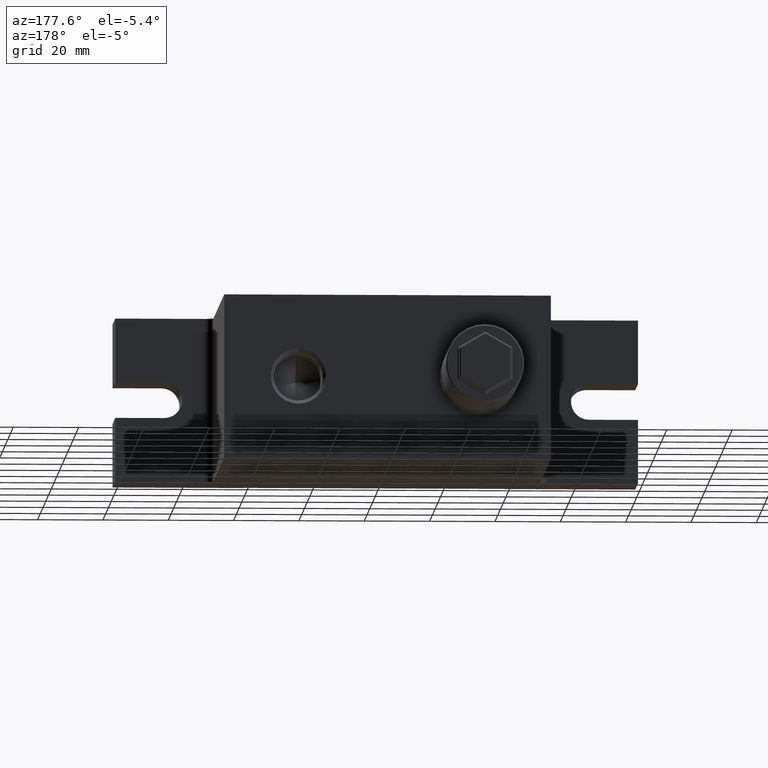
[diagram: clean part render]
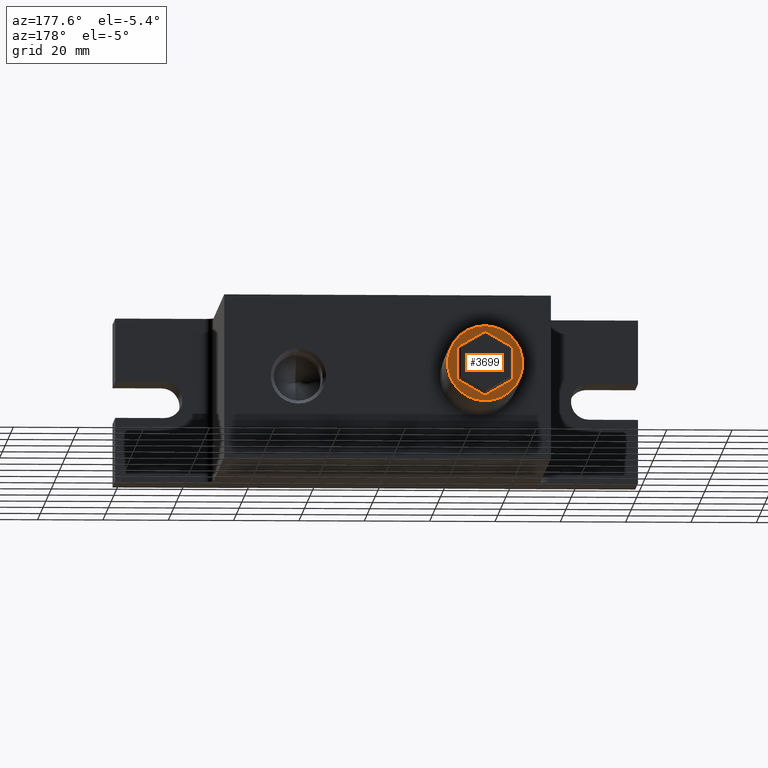
[diagram: same view with one face highlighted and labeled with its STEP entity id]
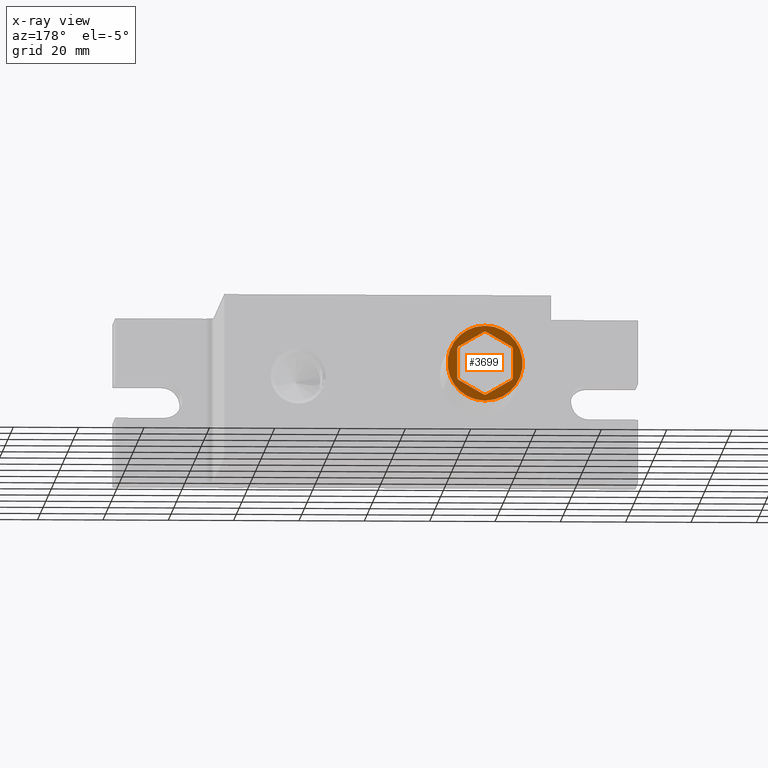
[diagram: x-ray of the same camera — body ghosted, the highlighted face saturated]
A machine part, auxiliary view. The second image highlights one B-rep face of the part: STEP entity #3699.
The next image is the same camera in x-ray: the body ghosted, the highlighted face saturated — about 0% of this face is hidden behind the body in this view.
In plain terms, the highlighted planar face has unit normal (0, 1, 0).
Its self-contained STEP definition (entity closure, byte-faithful):
#95 = AXIS2_PLACEMENT_3D ( 'NONE', #2084, #6870, #3706 ) ;
#120 = CARTESIAN_POINT ( 'NONE',  ( -36.50000000000000000, 94.00000000000000000, 4.330127018922191000 ) ) ;
#211 = VERTEX_POINT ( 'NONE', #5470 ) ;
#224 = CIRCLE ( 'NONE', #2740, 11.50000000000000000 ) ;
#235 = VECTOR ( 'NONE', #1943, 1000.000000000000000 ) ;
#265 = CARTESIAN_POINT ( 'NONE',  ( -35.50000000000000000, 94.00000000000000000, 4.330127018922191000 ) ) ;
#306 = CARTESIAN_POINT ( 'NONE',  ( -36.50000000000000000, 94.00000000000000000, -4.330127018922191000 ) ) ;
#331 = AXIS2_PLACEMENT_3D ( 'NONE', #3846, #4343, #1154 ) ;
#406 = CARTESIAN_POINT ( 'NONE',  ( -28.00000000000000000, 94.00000000000000000, 0.0000000000000000000 ) ) ;
#458 = DIRECTION ( 'NONE',  ( 0.0000000000000000000, 1.000000000000000000, 0.0000000000000000000 ) ) ;
#703 = EDGE_CURVE ( 'NONE', #992, #1751, #4697, .T. ) ;
#926 = VECTOR ( 'NONE', #3487, 1000.000000000000000 ) ;
#951 = CARTESIAN_POINT ( 'NONE',  ( -32.25000000000000000, 94.00000000000000000, -7.361215932167730200 ) ) ;
#958 = DIRECTION ( 'NONE',  ( 0.0000000000000000000, 1.000000000000000000, 0.0000000000000000000 ) ) ;
#974 = DIRECTION ( 'NONE',  ( 0.0000000000000000000, 0.0000000000000000000, -1.000000000000000000 ) ) ;
#982 = VERTEX_POINT ( 'NONE', #306 ) ;
#992 = VERTEX_POINT ( 'NONE', #2489 ) ;
#1151 = CARTESIAN_POINT ( 'NONE',  ( -36.50000000000000000, 94.00000000000000000, 0.0000000000000000000 ) ) ;
#1154 = DIRECTION ( 'NONE',  ( 0.0000000000000000000, 0.0000000000000000000, -1.000000000000000000 ) ) ;
#1189 = DIRECTION ( 'NONE',  ( 0.0000000000000000000, 1.000000000000000000, 0.0000000000000000000 ) ) ;
#1219 = DIRECTION ( 'NONE',  ( 0.0000000000000000000, 0.0000000000000000000, -1.000000000000000000 ) ) ;
#1249 = LINE ( 'NONE', #6448, #4647 ) ;
#1270 = LINE ( 'NONE', #2387, #926 ) ;
#1289 = VERTEX_POINT ( 'NONE', #1541 ) ;
#1301 = EDGE_CURVE ( 'NONE', #2061, #4721, #1975, .T. ) ;
#1310 = ORIENTED_EDGE ( 'NONE', *, *, #3959, .T. ) ;
#1348 = FACE_BOUND ( 'NONE', #6830, .T. ) ;
#1361 = AXIS2_PLACEMENT_3D ( 'NONE', #3934, #5623, #6158 ) ;
#1364 = VERTEX_POINT ( 'NONE', #4935 ) ;
#1383 = VECTOR ( 'NONE', #3113, 1000.000000000000000 ) ;
#1430 = DIRECTION ( 'NONE',  ( 0.0000000000000000000, 0.0000000000000000000, -1.000000000000000000 ) ) ;
#1485 = CARTESIAN_POINT ( 'NONE',  ( -28.00000000000000000, 94.00000000000000000, -8.660254037844390900 ) ) ;
#1501 = ORIENTED_EDGE ( 'NONE', *, *, #2509, .F. ) ;
#1504 = PLANE ( 'NONE',  #4076 ) ;
#1515 = CIRCLE ( 'NONE', #6824, 1.000000000000000000 ) ;
#1541 = CARTESIAN_POINT ( 'NONE',  ( -28.00000000000000000, 94.00000000000000000, -11.50000000000000000 ) ) ;
#1567 = CARTESIAN_POINT ( 'NONE',  ( -19.50000000000000000, 94.00000000000000000, -4.330127018922199900 ) ) ;
#1614 = DIRECTION ( 'NONE',  ( 0.0000000000000000000, 0.0000000000000000000, -1.000000000000000000 ) ) ;
#1623 = CARTESIAN_POINT ( 'NONE',  ( -28.50000000000000000, 94.00000000000000000, -9.526279441628831900 ) ) ;
#1638 = DIRECTION ( 'NONE',  ( 0.0000000000000000000, 0.0000000000000000000, -1.000000000000000000 ) ) ;
#1750 = ORIENTED_EDGE ( 'NONE', *, *, #6162, .F. ) ;
#1751 = VERTEX_POINT ( 'NONE', #1623 ) ;
#1839 = CIRCLE ( 'NONE', #331, 1.000000000000000000 ) ;
#1869 = VECTOR ( 'NONE', #5765, 1000.000000000000000 ) ;
#1943 = DIRECTION ( 'NONE',  ( -0.0000000000000000000, -0.0000000000000000000, 1.000000000000000000 ) ) ;
#1975 = CIRCLE ( 'NONE', #5735, 1.000000000000000000 ) ;
#1997 = CARTESIAN_POINT ( 'NONE',  ( -23.75000000000000000, 94.00000000000000000, 7.361215932167730200 ) ) ;
#2003 = DIRECTION ( 'NONE',  ( 0.0000000000000000000, 1.000000000000000000, 0.0000000000000000000 ) ) ;
#2061 = VERTEX_POINT ( 'NONE', #4977 ) ;
#2065 = VERTEX_POINT ( 'NONE', #120 ) ;
#2084 = CARTESIAN_POINT ( 'NONE',  ( -28.00000000000000000, 94.00000000000000000, -8.660254037844390900 ) ) ;
#2291 = VERTEX_POINT ( 'NONE', #1567 ) ;
#2322 = ORIENTED_EDGE ( 'NONE', *, *, #5463, .T. ) ;
#2356 = CARTESIAN_POINT ( 'NONE',  ( -28.00000000000000000, 94.00000000000000000, -9.660254037844390900 ) ) ;
#2387 = CARTESIAN_POINT ( 'NONE',  ( -23.75000000000000000, 94.00000000000000000, -7.361215932167730200 ) ) ;
#2449 = EDGE_CURVE ( 'NONE', #2065, #1364, #1515, .T. ) ;
#2489 = CARTESIAN_POINT ( 'NONE',  ( -36.00000000000000000, 94.00000000000000000, -5.196152422706630200 ) ) ;
#2509 = EDGE_CURVE ( 'NONE', #2291, #5114, #2704, .T. ) ;
#2518 = CARTESIAN_POINT ( 'NONE',  ( -27.50000000000000000, 94.00000000000000000, 9.526279441628821200 ) ) ;
#2594 = ORIENTED_EDGE ( 'NONE', *, *, #5816, .T. ) ;
#2600 = DIRECTION ( 'NONE',  ( -0.8660254037844387100, -0.0000000000000000000, -0.4999999999999998900 ) ) ;
#2636 = ORIENTED_EDGE ( 'NONE', *, *, #1301, .F. ) ;
#2651 = CIRCLE ( 'NONE', #6753, 1.000000000000000000 ) ;
#2686 = CIRCLE ( 'NONE', #4608, 1.000000000000000900 ) ;
#2704 = CIRCLE ( 'NONE', #1361, 1.000000000000000000 ) ;
#2740 = AXIS2_PLACEMENT_3D ( 'NONE', #6275, #4027, #3585 ) ;
#2787 = FACE_OUTER_BOUND ( 'NONE', #3676, .T. ) ;
#2879 = VECTOR ( 'NONE', #5992, 1000.000000000000000 ) ;
#2947 = ORIENTED_EDGE ( 'NONE', *, *, #4043, .T. ) ;
#2964 = CIRCLE ( 'NONE', #95, 1.000000000000000900 ) ;
#3113 = DIRECTION ( 'NONE',  ( 0.8660254037844387100, -0.0000000000000000000, -0.4999999999999998900 ) ) ;
#3124 = LINE ( 'NONE', #5136, #235 ) ;
#3195 = VERTEX_POINT ( 'NONE', #2356 ) ;
#3203 = CARTESIAN_POINT ( 'NONE',  ( -27.50000000000000000, 94.00000000000000000, -9.526279441628831900 ) ) ;
#3298 = EDGE_CURVE ( 'NONE', #5790, #4721, #5165, .T. ) ;
#3471 = VERTEX_POINT ( 'NONE', #3203 ) ;
#3487 = DIRECTION ( 'NONE',  ( 0.8660254037844387100, -0.0000000000000000000, 0.4999999999999998900 ) ) ;
#3535 = ORIENTED_EDGE ( 'NONE', *, *, #3627, .F. ) ;
#3585 = DIRECTION ( 'NONE',  ( 0.0000000000000000000, 0.0000000000000000000, -1.000000000000000000 ) ) ;
#3627 = EDGE_CURVE ( 'NONE', #3471, #3195, #2964, .T. ) ;
#3676 = EDGE_LOOP ( 'NONE', ( #2594, #6521 ) ) ;
#3699 = ADVANCED_FACE ( 'NONE', ( #2787, #1348 ), #1504, .T. ) ;
#3706 = DIRECTION ( 'NONE',  ( 0.0000000000000000000, 0.0000000000000000000, -1.000000000000000000 ) ) ;
#3713 = LINE ( 'NONE', #1151, #2879 ) ;
#3846 = CARTESIAN_POINT ( 'NONE',  ( -35.50000000000000000, 94.00000000000000000, -4.330127018922191000 ) ) ;
#3934 = CARTESIAN_POINT ( 'NONE',  ( -20.50000000000000000, 94.00000000000000000, -4.330127018922199900 ) ) ;
#3959 = EDGE_CURVE ( 'NONE', #2065, #982, #3713, .T. ) ;
#4027 = DIRECTION ( 'NONE',  ( 0.0000000000000000000, 1.000000000000000000, 0.0000000000000000000 ) ) ;
#4043 = EDGE_CURVE ( 'NONE', #3471, #5114, #1270, .T. ) ;
#4076 = AXIS2_PLACEMENT_3D ( 'NONE', #406, #458, #1430 ) ;
#4097 = CARTESIAN_POINT ( 'NONE',  ( -19.50000000000000000, 94.00000000000000000, 4.330127018922191000 ) ) ;
#4193 = DIRECTION ( 'NONE',  ( 0.0000000000000000000, 1.000000000000000000, 0.0000000000000000000 ) ) ;
#4343 = DIRECTION ( 'NONE',  ( 0.0000000000000000000, 1.000000000000000000, 0.0000000000000000000 ) ) ;
#4556 = ORIENTED_EDGE ( 'NONE', *, *, #3298, .T. ) ;
#4608 = AXIS2_PLACEMENT_3D ( 'NONE', #1485, #4193, #974 ) ;
#4647 = VECTOR ( 'NONE', #2600, 1000.000000000000000 ) ;
#4697 = LINE ( 'NONE', #951, #1383 ) ;
#4702 = ORIENTED_EDGE ( 'NONE', *, *, #5631, .F. ) ;
#4709 = CARTESIAN_POINT ( 'NONE',  ( -28.00000000000000000, 94.00000000000000000, 8.660254037844390900 ) ) ;
#4721 = VERTEX_POINT ( 'NONE', #2518 ) ;
#4732 = ORIENTED_EDGE ( 'NONE', *, *, #5270, .T. ) ;
#4935 = CARTESIAN_POINT ( 'NONE',  ( -36.00000000000000000, 94.00000000000000000, 5.196152422706630200 ) ) ;
#4949 = DIRECTION ( 'NONE',  ( 0.0000000000000000000, 1.000000000000000000, 0.0000000000000000000 ) ) ;
#4977 = CARTESIAN_POINT ( 'NONE',  ( -28.50000000000000000, 94.00000000000000000, 9.526279441628821200 ) ) ;
#4983 = EDGE_CURVE ( 'NONE', #211, #1289, #5064, .T. ) ;
#5064 = CIRCLE ( 'NONE', #5899, 11.50000000000000000 ) ;
#5114 = VERTEX_POINT ( 'NONE', #6661 ) ;
#5136 = CARTESIAN_POINT ( 'NONE',  ( -19.50000000000000000, 94.00000000000000000, 0.0000000000000000000 ) ) ;
#5165 = LINE ( 'NONE', #1997, #1869 ) ;
#5270 = EDGE_CURVE ( 'NONE', #2291, #5751, #3124, .T. ) ;
#5339 = ORIENTED_EDGE ( 'NONE', *, *, #703, .T. ) ;
#5389 = EDGE_CURVE ( 'NONE', #3195, #1751, #2686, .T. ) ;
#5444 = CARTESIAN_POINT ( 'NONE',  ( -20.50000000000000000, 94.00000000000000000, 4.330127018922191000 ) ) ;
#5463 = EDGE_CURVE ( 'NONE', #2061, #1364, #1249, .T. ) ;
#5470 = CARTESIAN_POINT ( 'NONE',  ( -28.00000000000000000, 94.00000000000000000, 11.50000000000000000 ) ) ;
#5623 = DIRECTION ( 'NONE',  ( 0.0000000000000000000, 1.000000000000000000, 0.0000000000000000000 ) ) ;
#5631 = EDGE_CURVE ( 'NONE', #992, #982, #1839, .T. ) ;
#5735 = AXIS2_PLACEMENT_3D ( 'NONE', #4709, #2003, #6325 ) ;
#5751 = VERTEX_POINT ( 'NONE', #4097 ) ;
#5765 = DIRECTION ( 'NONE',  ( -0.8660254037844387100, -0.0000000000000000000, 0.4999999999999998900 ) ) ;
#5790 = VERTEX_POINT ( 'NONE', #6798 ) ;
#5816 = EDGE_CURVE ( 'NONE', #1289, #211, #224, .T. ) ;
#5899 = AXIS2_PLACEMENT_3D ( 'NONE', #5998, #4949, #1638 ) ;
#5992 = DIRECTION ( 'NONE',  ( -0.0000000000000000000, -0.0000000000000000000, -1.000000000000000000 ) ) ;
#5998 = CARTESIAN_POINT ( 'NONE',  ( -28.00000000000000000, 94.00000000000000000, 0.0000000000000000000 ) ) ;
#6158 = DIRECTION ( 'NONE',  ( 0.0000000000000000000, 0.0000000000000000000, -1.000000000000000000 ) ) ;
#6162 = EDGE_CURVE ( 'NONE', #5790, #5751, #2651, .T. ) ;
#6219 = ORIENTED_EDGE ( 'NONE', *, *, #2449, .F. ) ;
#6275 = CARTESIAN_POINT ( 'NONE',  ( -28.00000000000000000, 94.00000000000000000, 0.0000000000000000000 ) ) ;
#6325 = DIRECTION ( 'NONE',  ( 0.0000000000000000000, 0.0000000000000000000, -1.000000000000000000 ) ) ;
#6448 = CARTESIAN_POINT ( 'NONE',  ( -32.25000000000000000, 94.00000000000000000, 7.361215932167730200 ) ) ;
#6466 = ORIENTED_EDGE ( 'NONE', *, *, #5389, .F. ) ;
#6521 = ORIENTED_EDGE ( 'NONE', *, *, #4983, .T. ) ;
#6661 = CARTESIAN_POINT ( 'NONE',  ( -20.00000000000000000, 94.00000000000000000, -5.196152422706639100 ) ) ;
#6753 = AXIS2_PLACEMENT_3D ( 'NONE', #5444, #1189, #1219 ) ;
#6798 = CARTESIAN_POINT ( 'NONE',  ( -20.00000000000000000, 94.00000000000000000, 5.196152422706630200 ) ) ;
#6824 = AXIS2_PLACEMENT_3D ( 'NONE', #265, #958, #1614 ) ;
#6830 = EDGE_LOOP ( 'NONE', ( #3535, #2947, #1501, #4732, #1750, #4556, #2636, #2322, #6219, #1310, #4702, #5339, #6466 ) ) ;
#6870 = DIRECTION ( 'NONE',  ( 0.0000000000000000000, 1.000000000000000000, 0.0000000000000000000 ) ) ;